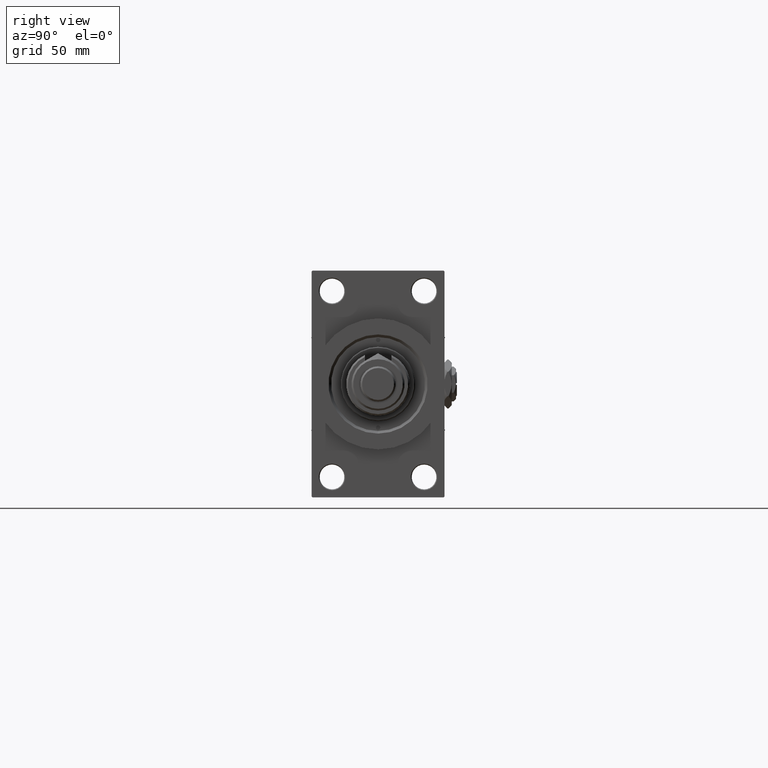
[diagram: clean part render]
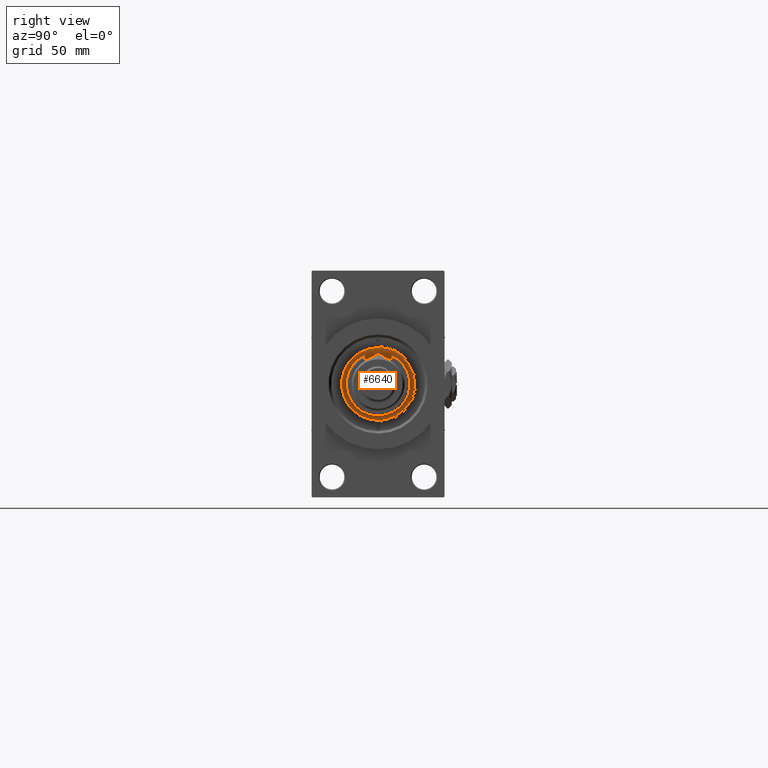
[diagram: same view with one face highlighted and labeled with its STEP entity id]
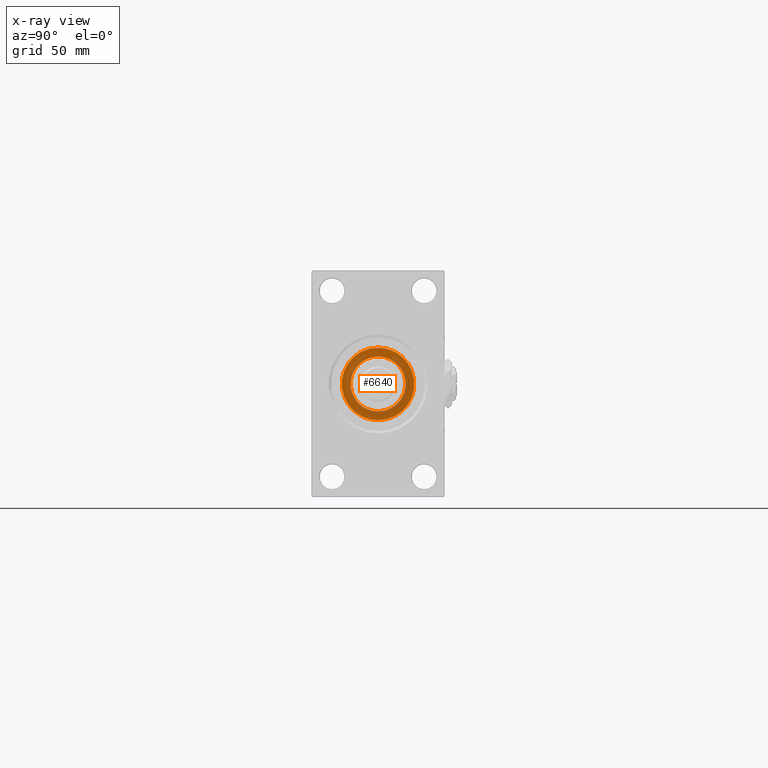
[diagram: x-ray of the same camera — body ghosted, the highlighted face saturated]
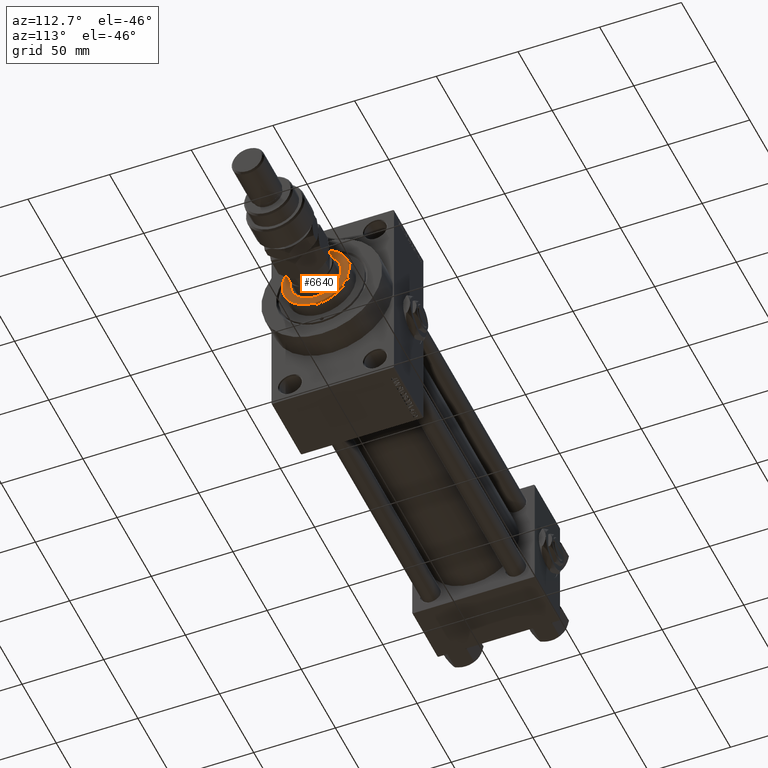
[diagram: same view with one face highlighted and labeled with its STEP entity id]
A machine part, right view. The second image highlights one B-rep face of the part: STEP entity #6640.
The next image is the same camera in x-ray: the body ghosted, the highlighted face saturated — about 40% of this face is hidden behind the body in this view.
A second angle (auxiliary view) of the same face is appended — the face is thin or edge-on in the first view.
In plain terms, the highlighted planar face has unit normal (1, -0, -0).
Its self-contained STEP definition (entity closure, byte-faithful):
#53 = AXIS2_PLACEMENT_3D ( 'NONE', #556, #8758, #21208 ) ;
#556 = CARTESIAN_POINT ( 'NONE',  ( 0.000000000000000000, 0.000000000000000000, 52.25999999999999801 ) ) ;
#2385 = ORIENTED_EDGE ( 'NONE', *, *, #16524, .T. ) ;
#3415 = CARTESIAN_POINT ( 'NONE',  ( 0.000000000000000000, 0.000000000000000000, 52.25999999999999801 ) ) ;
#4979 = ORIENTED_EDGE ( 'NONE', *, *, #30918, .T. ) ;
#5285 = CIRCLE ( 'NONE', #12944, 15.50000000000000000 ) ;
#6281 = DIRECTION ( 'NONE',  ( 1.000000000000000000, 0.000000000000000000, 0.000000000000000000 ) ) ;
#6640 = ADVANCED_FACE ( 'NONE', ( #9015, #16962 ), #36830, .T. ) ;
#7073 = CARTESIAN_POINT ( 'NONE',  ( 0.000000000000000000, 0.000000000000000000, 52.25999999999999801 ) ) ;
#8044 = CIRCLE ( 'NONE', #43589, 20.50000000000000355 ) ;
#8758 = DIRECTION ( 'NONE',  ( 0.000000000000000000, 0.000000000000000000, 1.000000000000000000 ) ) ;
#9015 = FACE_BOUND ( 'NONE', #40059, .T. ) ;
#10074 = EDGE_LOOP ( 'NONE', ( #4979, #2385 ) ) ;
#12148 = DIRECTION ( 'NONE',  ( 1.000000000000000000, 0.000000000000000000, 0.000000000000000000 ) ) ;
#12944 = AXIS2_PLACEMENT_3D ( 'NONE', #3415, #52118, #12148 ) ;
#13526 = EDGE_CURVE ( 'NONE', #15705, #45795, #5285, .T. ) ;
#13886 = CIRCLE ( 'NONE', #47715, 20.50000000000000355 ) ;
#14384 = CARTESIAN_POINT ( 'NONE',  ( 15.50000000000000000, 0.000000000000000000, 52.25999999999999801 ) ) ;
#14858 = CIRCLE ( 'NONE', #48672, 15.50000000000000000 ) ;
#15705 = VERTEX_POINT ( 'NONE', #14384 ) ;
#16524 = EDGE_CURVE ( 'NONE', #37636, #33937, #13886, .T. ) ;
#16714 = DIRECTION ( 'NONE',  ( 1.000000000000000000, 0.000000000000000000, 0.000000000000000000 ) ) ;
#16962 = FACE_OUTER_BOUND ( 'NONE', #10074, .T. ) ;
#20009 = CARTESIAN_POINT ( 'NONE',  ( 0.000000000000000000, 0.000000000000000000, 52.25999999999999801 ) ) ;
#21208 = DIRECTION ( 'NONE',  ( 1.000000000000000000, 0.000000000000000000, -0.000000000000000000 ) ) ;
#28880 = DIRECTION ( 'NONE',  ( 0.000000000000000000, 0.000000000000000000, 1.000000000000000000 ) ) ;
#29229 = DIRECTION ( 'NONE',  ( 0.000000000000000000, 0.000000000000000000, 1.000000000000000000 ) ) ;
#30918 = EDGE_CURVE ( 'NONE', #33937, #37636, #8044, .T. ) ;
#31652 = EDGE_CURVE ( 'NONE', #45795, #15705, #14858, .T. ) ;
#33937 = VERTEX_POINT ( 'NONE', #33995 ) ;
#33995 = CARTESIAN_POINT ( 'NONE',  ( -20.50000000000000355, 0.000000000000000000, 52.25999999999999801 ) ) ;
#34470 = ORIENTED_EDGE ( 'NONE', *, *, #31652, .F. ) ;
#35379 = ORIENTED_EDGE ( 'NONE', *, *, #13526, .F. ) ;
#36149 = DIRECTION ( 'NONE',  ( 1.000000000000000000, 0.000000000000000000, 0.000000000000000000 ) ) ;
#36830 = PLANE ( 'NONE',  #53 ) ;
#36836 = CARTESIAN_POINT ( 'NONE',  ( 0.000000000000000000, 0.000000000000000000, 52.25999999999999801 ) ) ;
#37484 = CARTESIAN_POINT ( 'NONE',  ( -15.50000000000000000, 1.898202538678397557E-15, 52.25999999999999801 ) ) ;
#37636 = VERTEX_POINT ( 'NONE', #43153 ) ;
#40059 = EDGE_LOOP ( 'NONE', ( #35379, #34470 ) ) ;
#42568 = DIRECTION ( 'NONE',  ( 0.000000000000000000, 0.000000000000000000, 1.000000000000000000 ) ) ;
#43153 = CARTESIAN_POINT ( 'NONE',  ( 20.50000000000000355, 2.541142108230758269E-15, 52.25999999999999801 ) ) ;
#43589 = AXIS2_PLACEMENT_3D ( 'NONE', #7073, #42568, #6281 ) ;
#45795 = VERTEX_POINT ( 'NONE', #37484 ) ;
#47715 = AXIS2_PLACEMENT_3D ( 'NONE', #20009, #29229, #36149 ) ;
#48672 = AXIS2_PLACEMENT_3D ( 'NONE', #36836, #28880, #16714 ) ;
#52118 = DIRECTION ( 'NONE',  ( 0.000000000000000000, 0.000000000000000000, 1.000000000000000000 ) ) ;